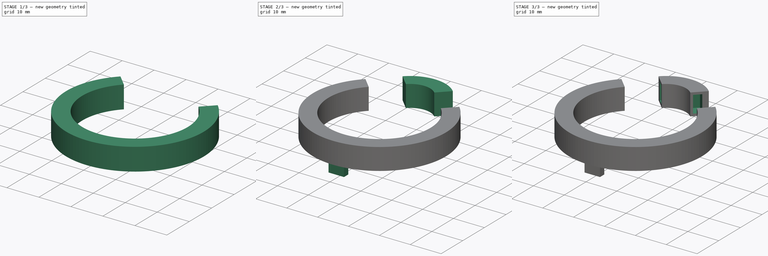
[diagram: build sequence overview — one tinted view per stage of 3, left to right]
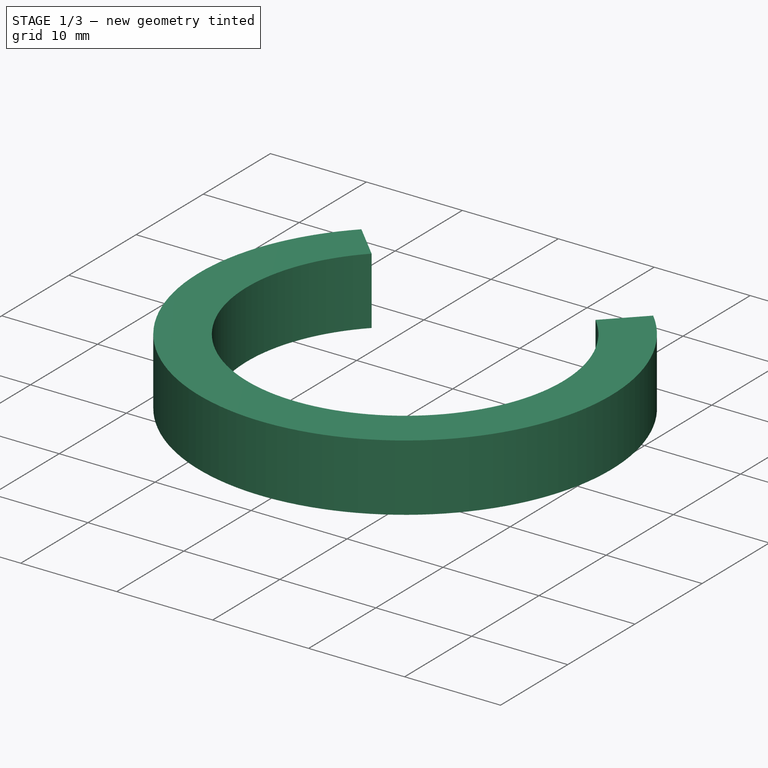
[diagram: stage 1 of 3 — iso view after this stage's code; geometry added in this stage tinted green]
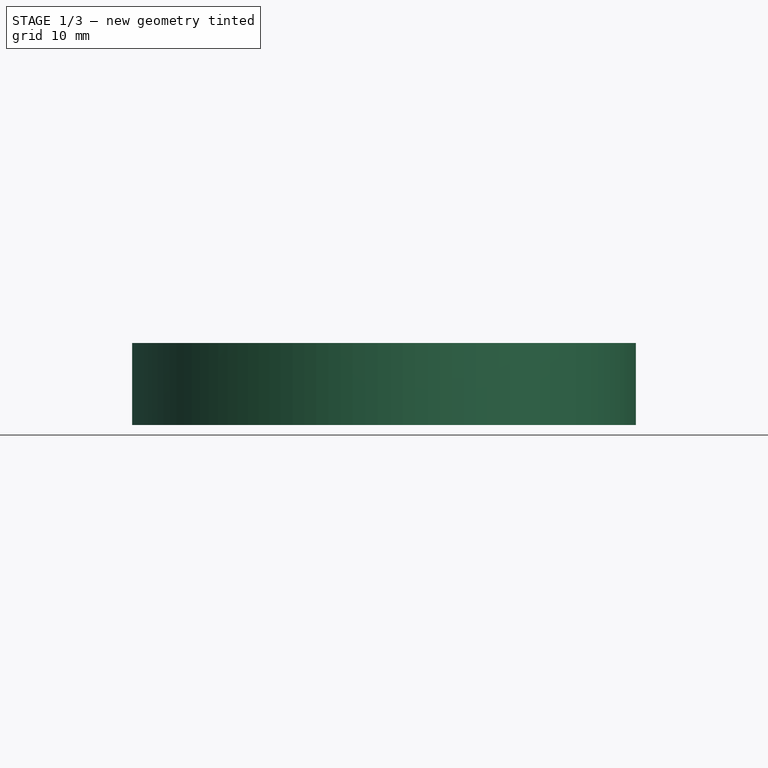
[diagram: stage 1 of 3 — front view after this stage's code; geometry added in this stage tinted green]
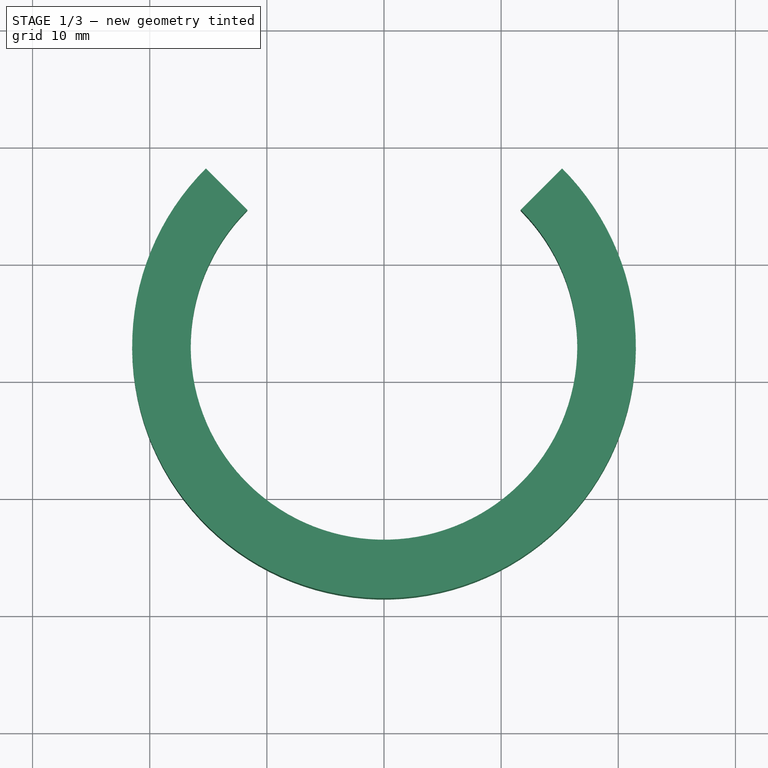
[diagram: stage 1 of 3 — top view after this stage's code; geometry added in this stage tinted green]
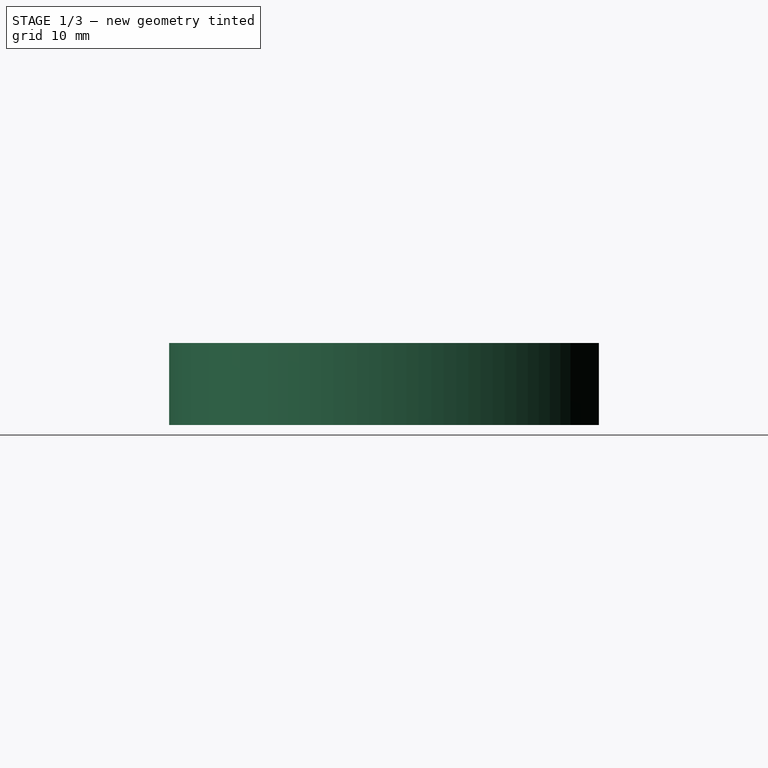
[diagram: stage 1 of 3 — right view after this stage's code; geometry added in this stage tinted green]
FCSTD DOCUMENT  (FreeCAD 0.20R29603 (Git))
Label: LaserCoolersCircles
License: All rights reserved
LicenseURL: http://en.wikipedia.org/wiki/All_rights_reserved
objects: Sketcher::SketchObject×7, PartDesign::Pocket×4, PartDesign::Pad×3, PartDesign::Body×2
note: 23 computed .brp shape members not serialized (recipe doc carries the construction recipe); baked Part::Feature solids carry a one-line shape summary decoded from their .brp

FEATURE [PartDesign::Body] Body  label="Top"
  Group = -> [Sketch,Pad,Sketch003,Pocket,Sketch004,Pocket001]
  Origin = -> Origin
  Tip = -> Pocket001
FEATURE [Sketcher::SketchObject] Sketch006  label="TemplateSketch002"
  FullyConstrained = true
  MapMode = 5
  Support = -> [XY_Plane001]
  sketch-geometry (11):
    g0: Circle CenterX=0 CenterY=0 CenterZ=0 NormalX=0 NormalY=0 NormalZ=1 AngleXU=0 Radius=13.5
    g1: LineSegment StartX=13.0815 StartY=6.01041 StartZ=0 EndX=6.01041 EndY=13.0815 EndZ=0
    g2: LineSegment StartX=0 StartY=0 StartZ=0 EndX=9.54594 EndY=9.54594 EndZ=0
    g3: LineSegment StartX=0 StartY=0 StartZ=0 EndX=-9.54594 EndY=9.54594 EndZ=0
    g4: Circle CenterX=0 CenterY=0 CenterZ=0 NormalX=0 NormalY=0 NormalZ=1 AngleXU=0 Radius=10.5
    g5: LineSegment StartX=15.2028 StartY=8.13173 StartZ=0 EndX=11.6673 EndY=4.59619 EndZ=0
    g6: LineSegment StartX=15.2028 StartY=8.13173 StartZ=0 EndX=8.13173 EndY=15.2028 EndZ=0
    g7: ArcOfCircle CenterX=5e-16 CenterY=-7.07108 CenterZ=0 NormalX=0 NormalY=0 NormalZ=1 AngleXU=0 Radius=16.5 StartAngle=2.35619 EndAngle=7.06858
    g8: ArcOfCircle CenterX=-2e-16 CenterY=-7.07108 CenterZ=0 NormalX=0 NormalY=0 NormalZ=1 AngleXU=0 Radius=21.5 StartAngle=2.35619 EndAngle=7.06858
    g9: LineSegment StartX=11.6673 StartY=4.59619 StartZ=0 EndX=15.2028 EndY=8.13173 EndZ=0
    g10: LineSegment StartX=-15.2028 StartY=8.13173 StartZ=0 EndX=-11.6673 EndY=4.59619 EndZ=0
  constraints (28):
    c: Coincident(g0,g-1)
    c: Diameter(g0) = 27
    c: Coincident(g2,g0)
    c: PointOnObject(g2,g0)
    c: Coincident(g3,g0)
    c: Symmetric(g3,g2,g-2)
    c: Angle(g2,g3) = 1.5708
    c: Distance(g1) = 10
    c: Symmetric(g1,g1,g2)
    c: Tangent(g1,g0)
    c: Coincident(g4,g0)
    c: Diameter(g4) = 21
    c: Angle(g1,g5) = 1.5708
    c: PointOnObject(g1,g5)
    c: Distance(g5,g1) = 2
    c: Distance(g5,g1) = 3
    c: Parallel(g6,g1)
    c: Equal(g6,g1)
    c: Coincident(g7,g5)
    c: Symmetric(g7,g7,g-2)
    c: Coincident(g8,g5)
    c: Symmetric(g8,g8,g-2)
    c: Coincident(g7,g8)
    c: Tangent(g6,g8) = -1.5708
    c: Coincident(g10,g8)
    c: Coincident(g10,g7)
    c: Coincident(g8,g9)
    c: Coincident(g7,g9)
FEATURE [PartDesign::Pad] Pad001
  Direction = (0,0,1)
  Length = 7
  Length2 = 10
  Profile = -> Sketch006
  ReferenceAxis = -> Sketch006 [N_Axis]
  Type = 0
FEATURE [Sketcher::SketchObject] Sketch007
  FullyConstrained = true
  MapMode = 5
  Placement = pos=(-3.53554,-3.53554,0) rot=(0.281085,0.678598,0.678598;2.59356rad)
  Support = -> [Pad001]
  sketch-geometry (5):
    g0: LineSegment StartX=12.25 StartY=0.75 StartZ=0 EndX=12.25 EndY=6.25 EndZ=0
    g1: LineSegment StartX=12.25 StartY=6.25 StartZ=0 EndX=14.75 EndY=6.25 EndZ=0
    g2: LineSegment StartX=14.75 StartY=6.25 StartZ=0 EndX=14.75 EndY=0.75 EndZ=0
    g3: LineSegment StartX=14.75 StartY=0.75 StartZ=0 EndX=12.25 EndY=0.75 EndZ=0
    g4: GeomPoint X=13.5 Y=3.5 Z=0
  constraints (13):
    c: Coincident(g0,g1)
    c: Coincident(g1,g2)
    c: Coincident(g2,g3)
    c: Coincident(g3,g0)
    c: Horizontal(g1)
    c: Horizontal(g3)
    c: Vertical(g0)
    c: Vertical(g2)
    c: Symmetric(g1,g0,g4)
    c: DistanceX(g4) = 13.5
    c: DistanceY(g4) = 3.5
    c: DistanceX(g1,g1) = 2.5
    c: DistanceY(g2,g2) = 5.5
FEATURE [PartDesign::Pocket] Pocket002
  BaseFeature = -> Pad001
  Direction = (-0.707107,-0.707107,-3e-16)
  Length = 3.5
  Length2 = 5
  Profile = -> Sketch007
  ReferenceAxis = -> Sketch007 [N_Axis]
  Type = 0
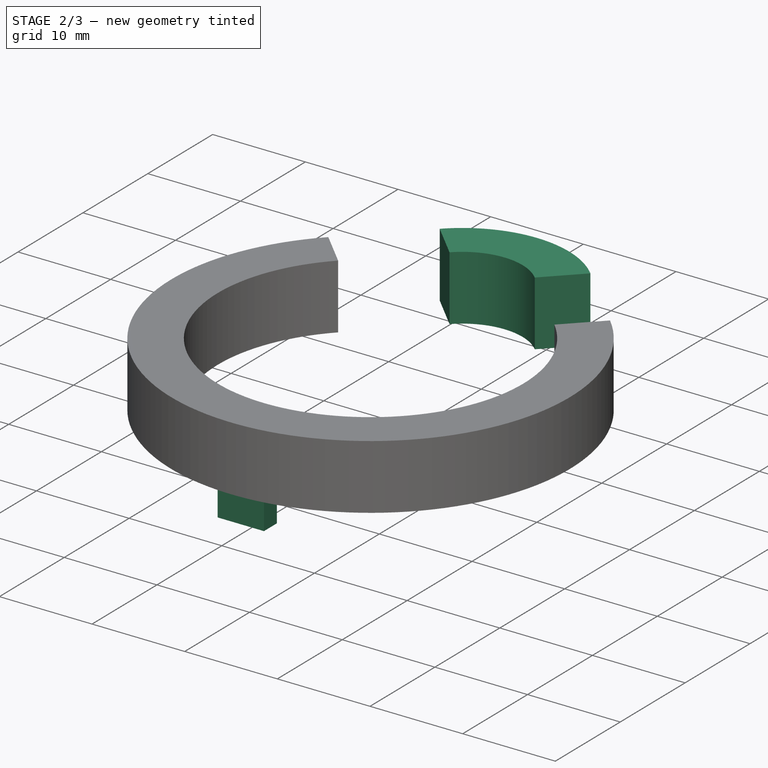
[diagram: stage 2 of 3 — iso view after this stage's code; geometry added in this stage tinted green]
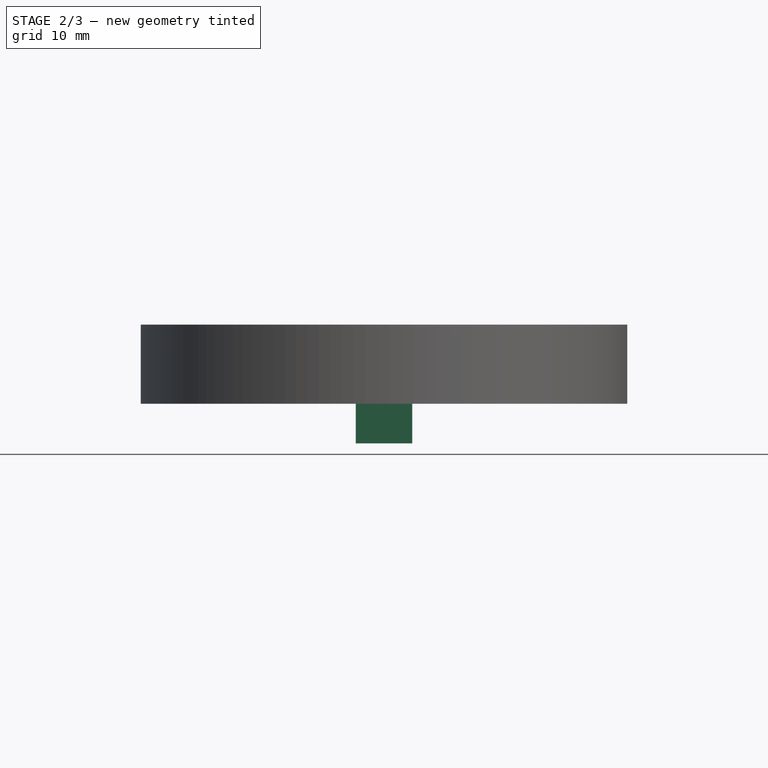
[diagram: stage 2 of 3 — front view after this stage's code; geometry added in this stage tinted green]
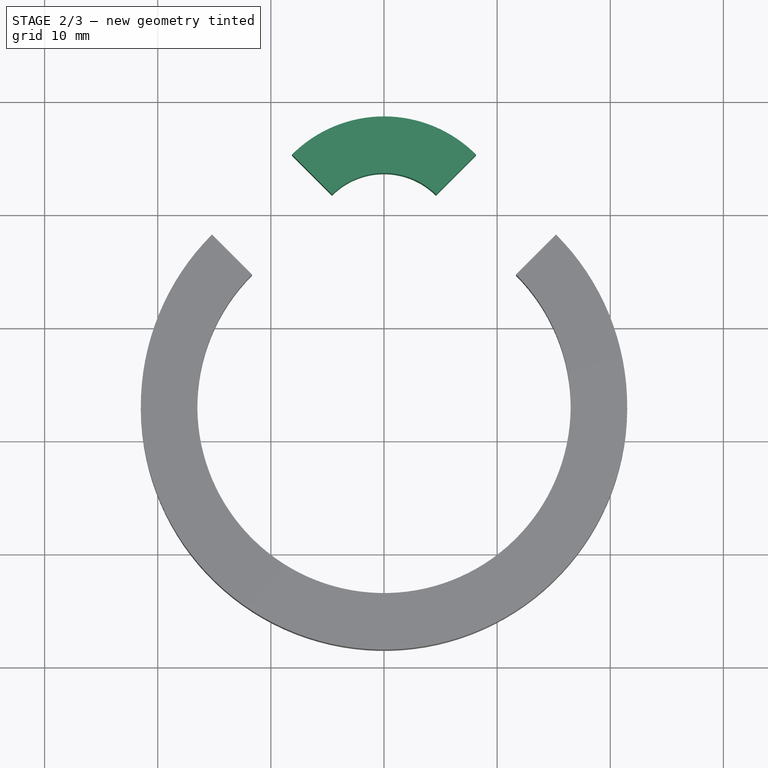
[diagram: stage 2 of 3 — top view after this stage's code; geometry added in this stage tinted green]
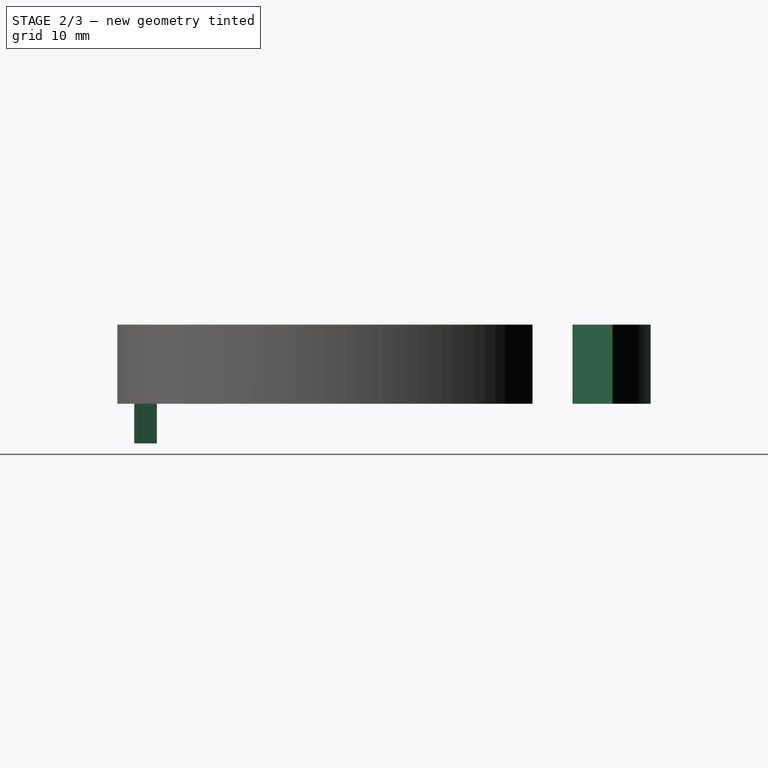
[diagram: stage 2 of 3 — right view after this stage's code; geometry added in this stage tinted green]
FEATURE [Sketcher::SketchObject] Sketch  label="TemplateSketch"
  FullyConstrained = true
  MapMode = 5
  Support = -> [XY_Plane]
  sketch-geometry (11):
    g0: Circle CenterX=0 CenterY=0 CenterZ=0 NormalX=0 NormalY=0 NormalZ=1 AngleXU=0 Radius=13.5
    g1: LineSegment StartX=13.0815 StartY=6.01041 StartZ=0 EndX=6.01041 EndY=13.0815 EndZ=0
    g2: LineSegment StartX=0 StartY=0 StartZ=0 EndX=9.54594 EndY=9.54594 EndZ=0
    g3: LineSegment StartX=0 StartY=0 StartZ=0 EndX=-9.54594 EndY=9.54594 EndZ=0
    g4: Circle CenterX=0 CenterY=0 CenterZ=0 NormalX=0 NormalY=0 NormalZ=1 AngleXU=0 Radius=10.5
    g5: LineSegment StartX=8.13173 StartY=15.2028 StartZ=0 EndX=4.59619 EndY=11.6673 EndZ=0
    g6: LineSegment StartX=8.13173 StartY=15.2028 StartZ=0 EndX=4.59619 EndY=11.6673 EndZ=0
    g7: LineSegment StartX=-8.13173 StartY=15.2028 StartZ=0 EndX=-4.59619 EndY=11.6673 EndZ=0
    g8: ArcOfCircle CenterX=1e-16 CenterY=7.07107 CenterZ=0 NormalX=0 NormalY=0 NormalZ=1 AngleXU=0 Radius=11.5 StartAngle=0.785398 EndAngle=2.35619
    g9: LineSegment StartX=8.13173 StartY=15.2028 StartZ=0 EndX=15.2028 EndY=8.13173 EndZ=0
    g10: ArcOfCircle CenterX=-7e-16 CenterY=7.07107 CenterZ=0 NormalX=0 NormalY=0 NormalZ=1 AngleXU=0 Radius=6.5 StartAngle=0.785398 EndAngle=2.35619
  constraints (29):
    c: Coincident(g0,g-1)
    c: Diameter(g0) = 27
    c: Coincident(g2,g0)
    c: PointOnObject(g2,g0)
    c: Coincident(g3,g0)
    c: Symmetric(g3,g2,g-2)
    c: Angle(g2,g3) = 1.5708
    c: Distance(g1) = 10
    c: Symmetric(g1,g1,g2)
    c: Tangent(g1,g0)
    c: Coincident(g4,g0)
    c: Diameter(g4) = 21
    c: PointOnObject(g1,g5)
    c: Angle(g1,g5) = 1.5708
    c: Distance(g1,g5) = 2
    c: Distance(g1,g5) = 3
    c: Coincident(g6,g5)
    c: Coincident(g6,g5)
    c: Symmetric(g7,g6,g-2)
    c: Symmetric(g7,g6,g-2)
    c: Coincident(g8,g7)
    c: Coincident(g8,g6)
    c: Coincident(g9,g6)
    c: Parallel(g9,g1)
    c: Tangent(g8,g9)
    c: Coincident(g10,g7)
    c: Coincident(g10,g6)
    c: Distance(g9) = 10
    c: Coincident(g10,g8)
FEATURE [PartDesign::Pad] Pad
  Direction = (0,0,1)
  Length = 7
  Length2 = 10
  Profile = -> Sketch
  ReferenceAxis = -> Sketch [N_Axis]
  Type = 0
FEATURE [Sketcher::SketchObject] Sketch008
  FullyConstrained = true
  MapMode = 5
  Placement = pos=(3.53554,-3.53554,0) rot=(-0.281085,0.678598,0.678598;3.68962rad)
  Support = -> [Pocket002]
  sketch-geometry (5):
    g0: LineSegment StartX=-14.75 StartY=6.25 StartZ=0 EndX=-14.75 EndY=0.75 EndZ=0
    g1: LineSegment StartX=-14.75 StartY=0.75 StartZ=0 EndX=-12.25 EndY=0.75 EndZ=0
    g2: LineSegment StartX=-12.25 StartY=0.75 StartZ=0 EndX=-12.25 EndY=6.25 EndZ=0
    g3: LineSegment StartX=-12.25 StartY=6.25 StartZ=0 EndX=-14.75 EndY=6.25 EndZ=0
    g4: GeomPoint X=-13.5 Y=3.5 Z=0
  constraints (13):
    c: Coincident(g0,g1)
    c: Coincident(g1,g2)
    c: Coincident(g2,g3)
    c: Coincident(g3,g0)
    c: Horizontal(g1)
    c: Horizontal(g3)
    c: Vertical(g0)
    c: Vertical(g2)
    c: Symmetric(g1,g0,g4)
    c: DistanceX(g4) = -13.5
    c: DistanceY(g4) = 3.5
    c: DistanceX(g3,g3) = 2.5
    c: DistanceY(g2,g2) = 5.5
FEATURE [PartDesign::Pocket] Pocket003
  BaseFeature = -> Pocket002
  Direction = (0.707107,-0.707107,0)
  Length = 3.5
  Length2 = 5
  Profile = -> Sketch008
  ReferenceAxis = -> Sketch008 [N_Axis]
  Type = 0
FEATURE [Sketcher::SketchObject] Sketch009  label="TemplateSketch003"
  FullyConstrained = true
  MapMode = 5
  Support = -> [XY_Plane001]
  sketch-geometry (18):
    g0: Circle CenterX=0 CenterY=0 CenterZ=0 NormalX=0 NormalY=0 NormalZ=1 AngleXU=0 Radius=13.5
    g1: LineSegment StartX=13.0815 StartY=6.01041 StartZ=0 EndX=6.01041 EndY=13.0815 EndZ=0
    g2: LineSegment StartX=0 StartY=0 StartZ=0 EndX=9.54594 EndY=9.54594 EndZ=0
    g3: LineSegment StartX=0 StartY=0 StartZ=0 EndX=-9.54594 EndY=9.54594 EndZ=0
    g4: Circle CenterX=0 CenterY=0 CenterZ=0 NormalX=0 NormalY=0 NormalZ=1 AngleXU=0 Radius=10.5
    g5: LineSegment StartX=15.2028 StartY=8.13173 StartZ=0 EndX=11.6673 EndY=4.59619 EndZ=0
    g6: LineSegment StartX=15.2028 StartY=8.13173 StartZ=0 EndX=8.13173 EndY=15.2028 EndZ=0
    g7: ArcOfCircle CenterX=4e-16 CenterY=-7.07107 CenterZ=0 NormalX=0 NormalY=0 NormalZ=1 AngleXU=0 Radius=16.5 StartAngle=2.35619 EndAngle=7.06858
    g8: ArcOfCircle CenterX=1.7e-15 CenterY=-7.07107 CenterZ=0 NormalX=0 NormalY=0 NormalZ=1 AngleXU=0 Radius=21.5 StartAngle=2.35619 EndAngle=7.06858
    g9: LineSegment StartX=11.6673 StartY=4.59619 StartZ=0 EndX=15.2028 EndY=8.13173 EndZ=0
    g10: LineSegment StartX=-15.2028 StartY=8.13173 StartZ=0 EndX=-11.6673 EndY=4.59619 EndZ=0
    g11: GeomPoint X=0 Y=-23.5711 Z=0
    g12: GeomPoint X=0 Y=-28.5711 Z=0
    g13: LineSegment StartX=-2.5 StartY=-25.0711 StartZ=0 EndX=-2.5 EndY=-27.0711 EndZ=0
    g14: LineSegment StartX=-2.5 StartY=-27.0711 StartZ=0 EndX=2.5 EndY=-27.0711 EndZ=0
    g15: LineSegment StartX=2.5 StartY=-27.0711 StartZ=0 EndX=2.5 EndY=-25.0711 EndZ=0
    g16: LineSegment StartX=2.5 StartY=-25.0711 StartZ=0 EndX=-2.5 EndY=-25.0711 EndZ=0
    g17: GeomPoint X=0 Y=-26.0711 Z=0
  constraints (44):
    c: Coincident(g0,g-1)
    c: Diameter(g0) = 27
    c: Coincident(g2,g0)
    c: PointOnObject(g2,g0)
    c: Coincident(g3,g0)
    c: Symmetric(g3,g2,g-2)
    c: Angle(g2,g3) = 1.5708
    c: Distance(g1) = 10
    c: Symmetric(g1,g1,g2)
    c: Tangent(g1,g0)
    c: Coincident(g4,g0)
    c: Diameter(g4) = 21
    c: Angle(g1,g5) = 1.5708
    c: PointOnObject(g1,g5)
    c: Distance(g5,g1) = 2
    c: Distance(g5,g1) = 3
    c: Parallel(g6,g1)
    c: Equal(g6,g1)
    c: Coincident(g7,g5)
    c: Symmetric(g7,g7,g-2)
    c: Coincident(g8,g5)
    c: Symmetric(g8,g8,g-2)
    c: Coincident(g7,g8)
    c: Tangent(g6,g8) = -1.5708
    c: Coincident(g10,g8)
    c: Coincident(g10,g7)
    c: Coincident(g8,g9)
    c: Coincident(g7,g9)
    c: PointOnObject(g12,g8)
    c: PointOnObject(g12,g-2)
    c: PointOnObject(g11,g-2)
    c: PointOnObject(g11,g7)
    c: Coincident(g13,g14)
    c: Coincident(g14,g15)
    c: Coincident(g15,g16)
    c: Coincident(g16,g13)
    c: Horizontal(g14)
    c: Horizontal(g16)
    c: Vertical(g13)
    c: Vertical(g15)
    c: Symmetric(g14,g13,g17)
    c: Symmetric(g12,g11,g17)
    c: DistanceX(g16,g16) = 5
    c: DistanceY(g15,g15) = 2
FEATURE [PartDesign::Pad] Pad002
  BaseFeature = -> Pocket003
  Direction = (0,0,1)
  Length = 3.5
  Length2 = 10
  Profile = -> Sketch009
  ReferenceAxis = -> Sketch009 [N_Axis]
  Reversed = true
  Type = 0
FEATURE [PartDesign::Body] Body001  label="Bottom"
  Group = -> [Sketch006,Pad001,Sketch007,Pocket002,Sketch008,Pocket003,Sketch009,Pad002]
  Origin = -> Origin001
  Tip = -> Pad002
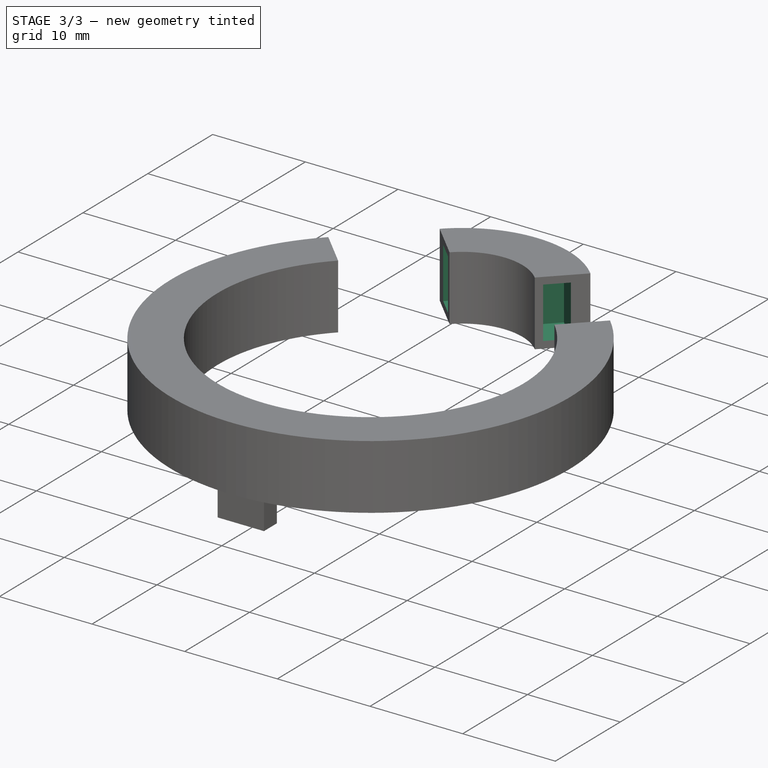
[diagram: stage 3 of 3 — iso view after this stage's code; geometry added in this stage tinted green]
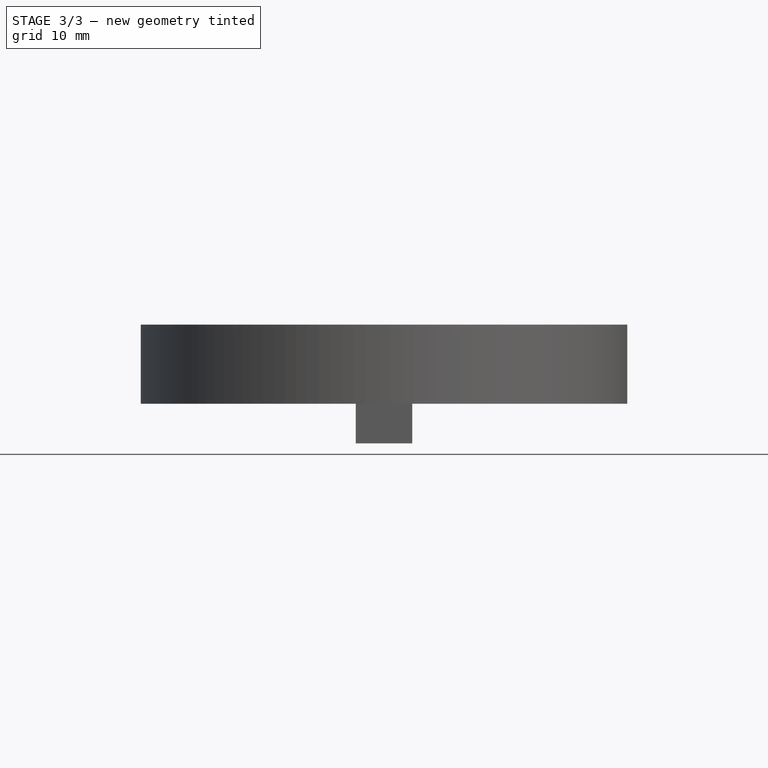
[diagram: stage 3 of 3 — front view after this stage's code; geometry added in this stage tinted green]
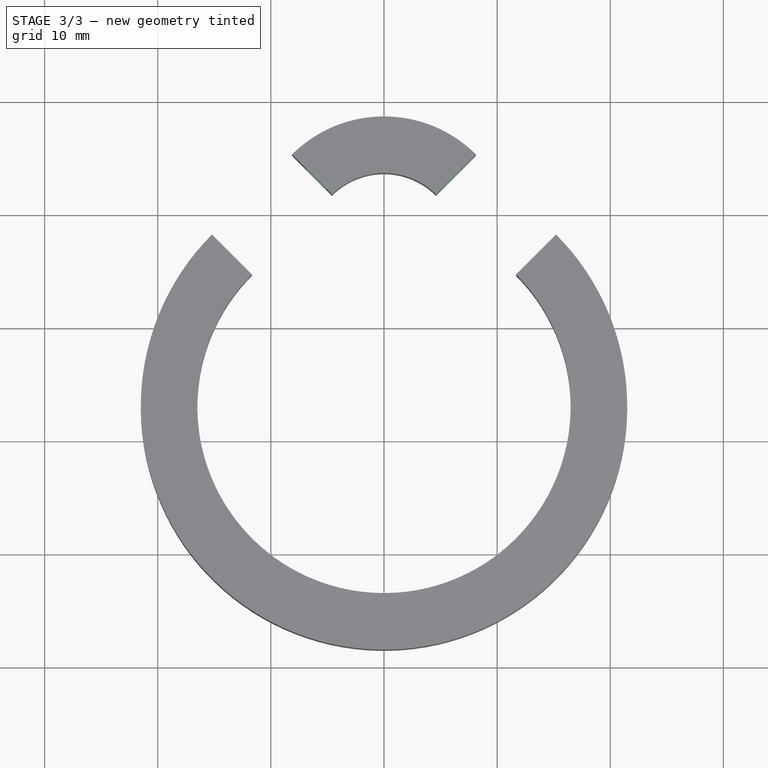
[diagram: stage 3 of 3 — top view after this stage's code; geometry added in this stage tinted green]
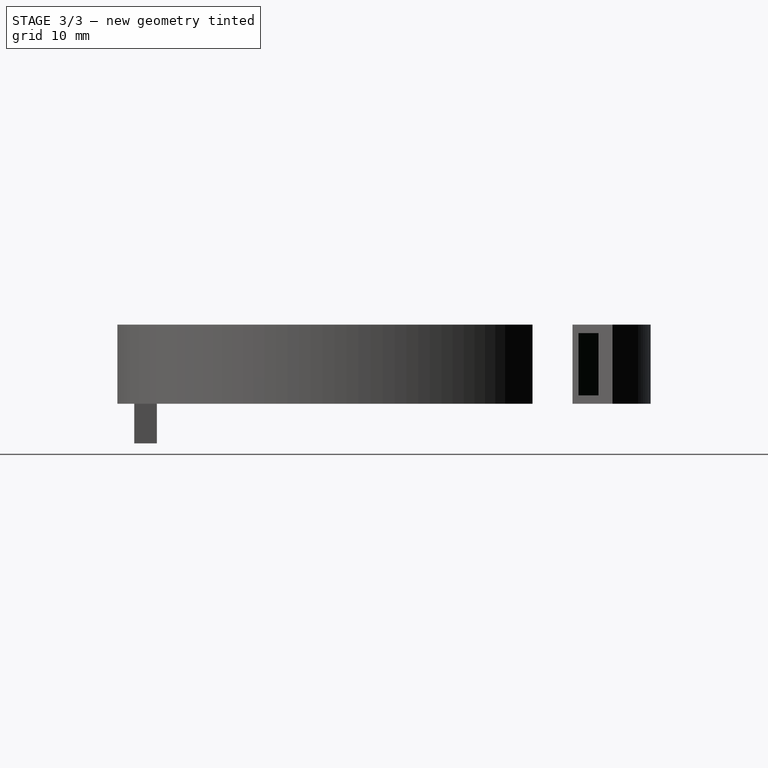
[diagram: stage 3 of 3 — right view after this stage's code; geometry added in this stage tinted green]
FEATURE [Sketcher::SketchObject] Sketch003
  FullyConstrained = true
  MapMode = 5
  Placement = pos=(-3.53553,3.53553,0) rot=(0.862856,0.357407,0.357407;1.71777rad)
  Support = -> [Pad]
  sketch-geometry (5):
    g0: LineSegment StartX=12.25 StartY=6.25 StartZ=0 EndX=12.25 EndY=0.75 EndZ=0
    g1: LineSegment StartX=12.25 StartY=0.75 StartZ=0 EndX=14.75 EndY=0.75 EndZ=0
    g2: LineSegment StartX=14.75 StartY=0.75 StartZ=0 EndX=14.75 EndY=6.25 EndZ=0
    g3: LineSegment StartX=14.75 StartY=6.25 StartZ=0 EndX=12.25 EndY=6.25 EndZ=0
    g4: GeomPoint X=13.5 Y=3.5 Z=0
  constraints (13):
    c: Coincident(g0,g1)
    c: Coincident(g1,g2)
    c: Coincident(g2,g3)
    c: Coincident(g3,g0)
    c: Horizontal(g1)
    c: Horizontal(g3)
    c: Vertical(g0)
    c: Vertical(g2)
    c: Symmetric(g1,g0,g4)
    c: DistanceX(g3,g3) = 2.5
    c: DistanceY(g2,g2) = 5.5
    c: DistanceX(g4) = 13.5
    c: DistanceY(g4) = 3.5
FEATURE [PartDesign::Pocket] Pocket
  BaseFeature = -> Pad
  Direction = (-0.707107,0.707107,2e-16)
  Length = 3.5
  Length2 = 5
  Profile = -> Sketch003
  ReferenceAxis = -> Sketch003 [N_Axis]
  Type = 0
FEATURE [Sketcher::SketchObject] Sketch004
  FullyConstrained = true
  MapMode = 5
  Placement = pos=(3.53553,3.53553,0) rot=(0.862856,-0.357407,-0.357407;1.71777rad)
  Support = -> [Pocket]
  sketch-geometry (5):
    g0: LineSegment StartX=-14.75 StartY=6.25 StartZ=0 EndX=-14.75 EndY=0.75 EndZ=0
    g1: LineSegment StartX=-14.75 StartY=0.75 StartZ=0 EndX=-12.25 EndY=0.75 EndZ=0
    g2: LineSegment StartX=-12.25 StartY=0.75 StartZ=0 EndX=-12.25 EndY=6.25 EndZ=0
    g3: LineSegment StartX=-12.25 StartY=6.25 StartZ=0 EndX=-14.75 EndY=6.25 EndZ=0
    g4: GeomPoint X=-13.5 Y=3.5 Z=0
  constraints (13):
    c: Coincident(g0,g1)
    c: Coincident(g1,g2)
    c: Coincident(g2,g3)
    c: Coincident(g3,g0)
    c: Horizontal(g1)
    c: Horizontal(g3)
    c: Vertical(g0)
    c: Vertical(g2)
    c: Symmetric(g1,g0,g4)
    c: DistanceX(g4) = -13.5
    c: DistanceY(g4) = 3.5
    c: DistanceX(g3,g3) = 2.5
    c: DistanceY(g0,g0) = 5.5
FEATURE [PartDesign::Pocket] Pocket001
  BaseFeature = -> Pocket
  Direction = (0.707107,0.707107,2e-16)
  Length = 3.5
  Length2 = 5
  Profile = -> Sketch004
  ReferenceAxis = -> Sketch004 [N_Axis]
  Type = 0
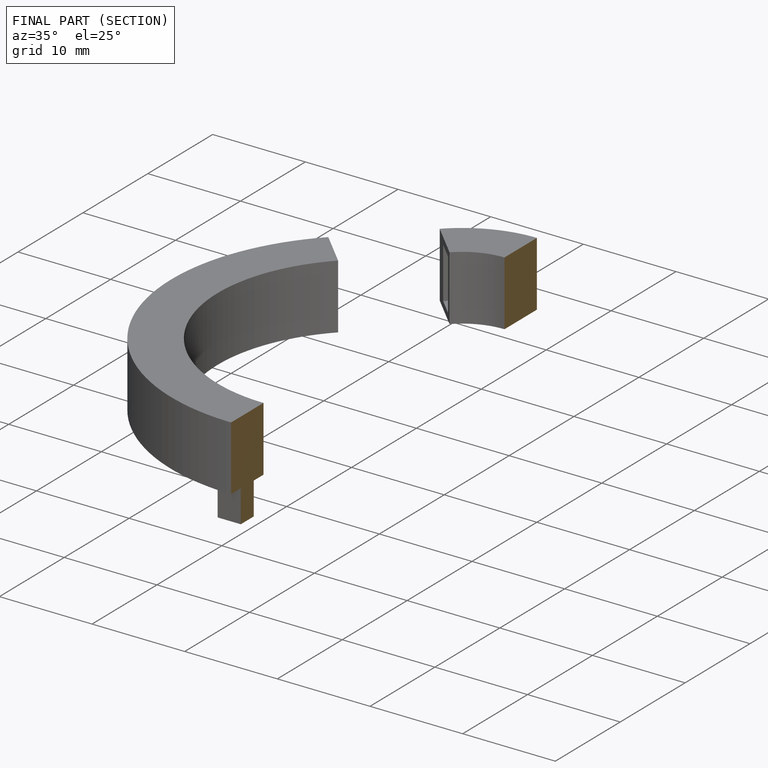
[diagram: finished part — half-section view (interior)]
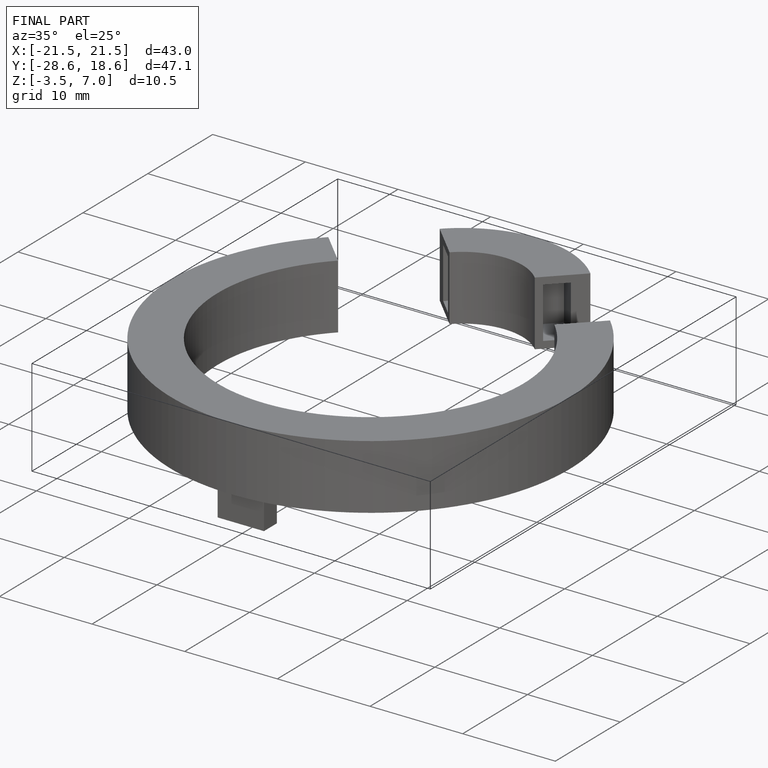
[diagram: finished part — iso view with bounding-box wireframe]
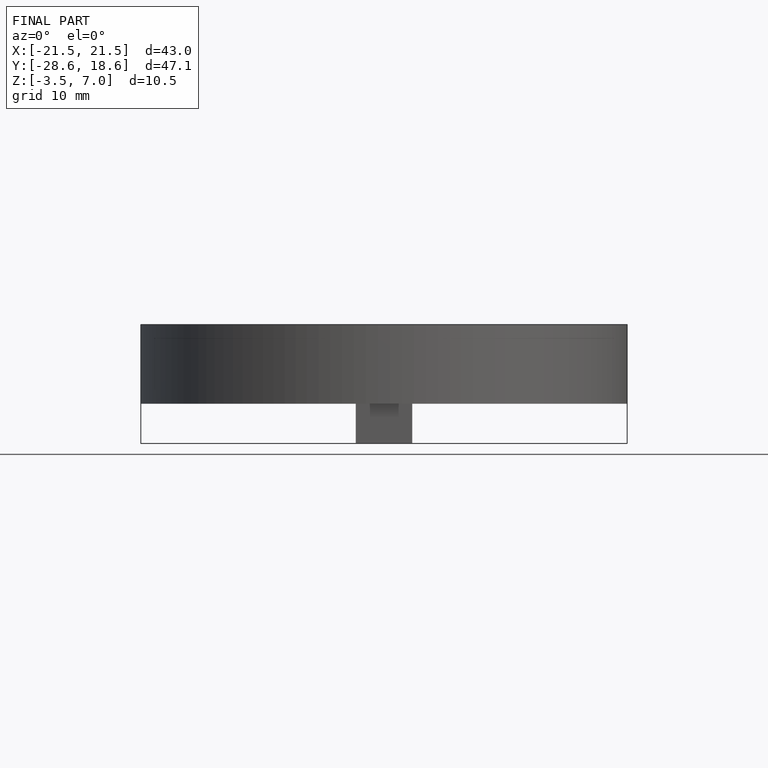
[diagram: finished part — front view with bounding-box wireframe]
